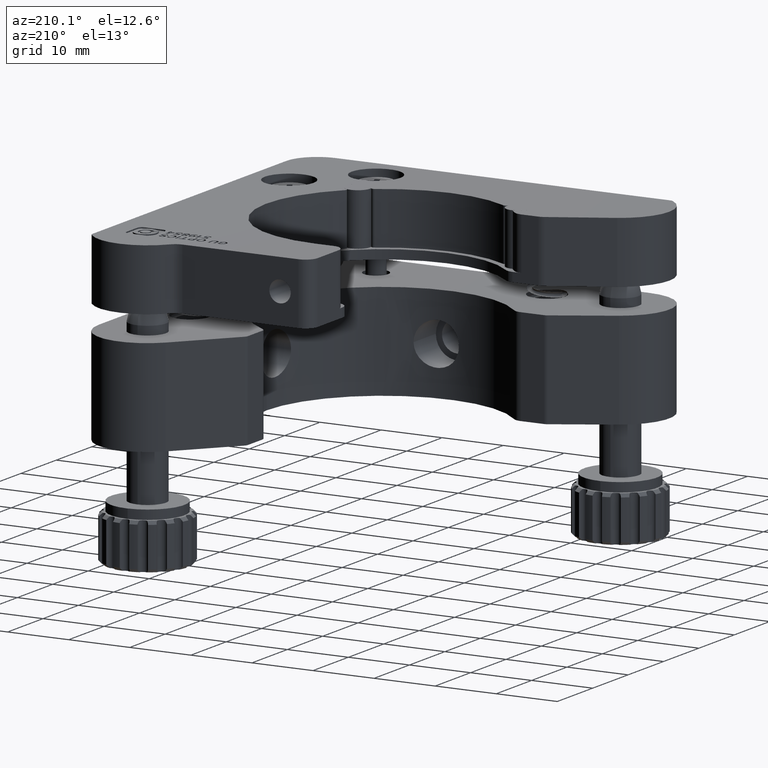
[diagram: clean part render]
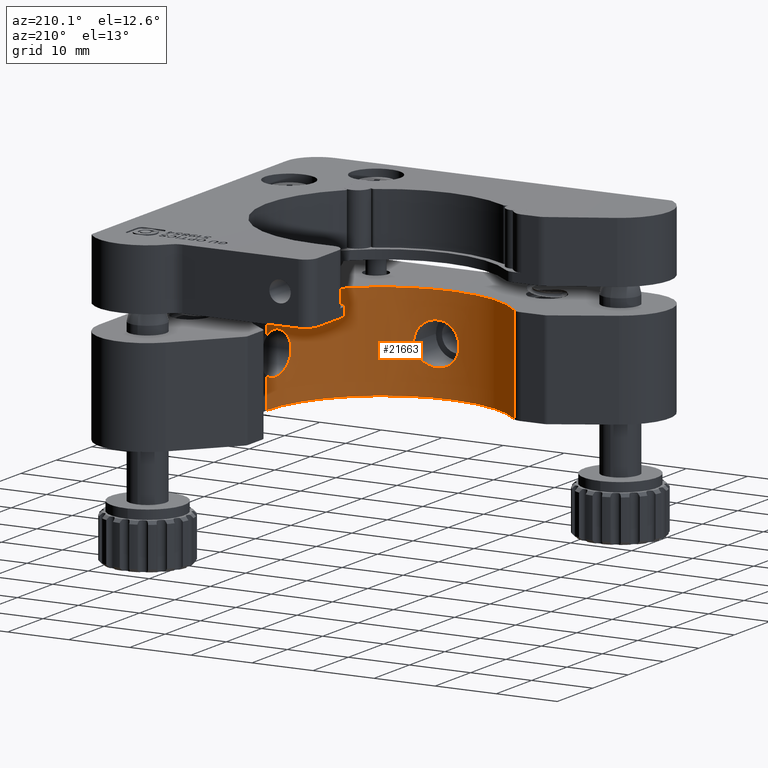
[diagram: same view with one face highlighted and labeled with its STEP entity id]
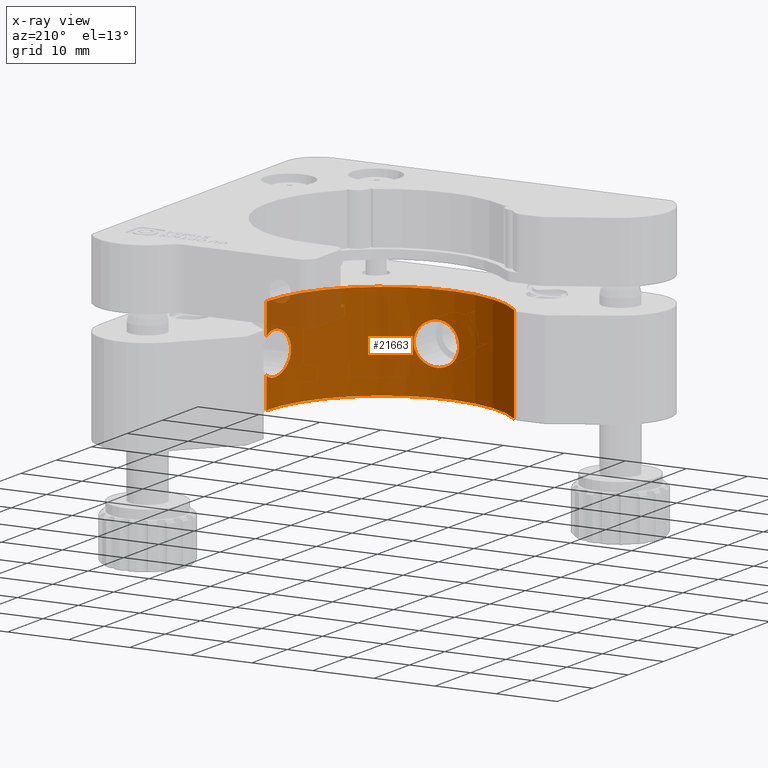
[diagram: x-ray of the same camera — body ghosted, the highlighted face saturated]
A machine part, auxiliary view. The second image highlights one B-rep face of the part: STEP entity #21663.
The next image is the same camera in x-ray: the body ghosted, the highlighted face saturated — about 10% of this face is hidden behind the body in this view.
In plain terms, the highlighted cylindrical surface (partial cylindrical patch) has radius 19 mm, axis along (0, 0, -1).
Its self-contained STEP definition (entity closure, byte-faithful):
#254 = CARTESIAN_POINT ( 'NONE',  ( -26.61379256147667900, 13.77937935081580700, 8.814848814971515600 ) ) ;
#429 = CARTESIAN_POINT ( 'NONE',  ( -26.52293857209325300, 13.80648507105459400, 7.439100718469515700 ) ) ;
#489 = CARTESIAN_POINT ( 'NONE',  ( -13.10555637230881300, 30.00000000000000000, 4.400000000000001200 ) ) ;
#546 = CARTESIAN_POINT ( 'NONE',  ( -30.20344647902263100, 13.08373591473725600, 4.398476656853080900 ) ) ;
#657 = CARTESIAN_POINT ( 'NONE',  ( -33.38649777885886700, 13.05060202588127500, 6.986400601522569300 ) ) ;
#723 = CARTESIAN_POINT ( 'NONE',  ( -13.57216054582884000, 27.36943169186558200, 5.580147786687201800 ) ) ;
#841 = CARTESIAN_POINT ( 'NONE',  ( -13.67790615344011200, 26.96828120605987100, 9.663690104870275000 ) ) ;
#1232 = CARTESIAN_POINT ( 'NONE',  ( -13.03242835914690500, 30.87754211996724500, 11.29283710719579000 ) ) ;
#1251 = EDGE_CURVE ( 'NONE', #28692, #14762, #32660, .T. ) ;
#1999 = LINE ( 'NONE', #27450, #31190 ) ;
#2401 = ORIENTED_EDGE ( 'NONE', *, *, #9771, .F. ) ;
#2671 = ORIENTED_EDGE ( 'NONE', *, *, #24306, .F. ) ;
#2908 = FACE_BOUND ( 'NONE', #15298, .T. ) ;
#3184 = CARTESIAN_POINT ( 'NONE',  ( -13.00000000000000000, 31.99999999999999300, 5.027718676730983400 ) ) ;
#3253 = CARTESIAN_POINT ( 'NONE',  ( -26.68044494635680800, 13.75964079812303400, 6.767303827567102900 ) ) ;
#3379 = CARTESIAN_POINT ( 'NONE',  ( -30.88614159856999600, 13.03133530389819900, 4.506285904225546100 ) ) ;
#3503 = CARTESIAN_POINT ( 'NONE',  ( -33.49999999999999300, 13.05930307512418200, 7.670711364052702500 ) ) ;
#3567 = CARTESIAN_POINT ( 'NONE',  ( -13.67787846902648000, 26.96835414940213800, 6.135970728754820400 ) ) ;
#3689 = CARTESIAN_POINT ( 'NONE',  ( -13.57241127540831900, 27.36837550289827400, 10.21886919155563500 ) ) ;
#3993 = CARTESIAN_POINT ( 'NONE',  ( -29.07593242472173900, 13.22500457450715000, 11.28345611036562500 ) ) ;
#4095 = CARTESIAN_POINT ( 'NONE',  ( -13.00944961083515100, 31.38003586603430200, 11.12132316934830800 ) ) ;
#4335 = CARTESIAN_POINT ( 'NONE',  ( -12.99999999999999800, 31.99999999999999300, 15.80000000000000100 ) ) ;
#4647 = CARTESIAN_POINT ( 'NONE',  ( -27.86060430729724800, 13.45538957386029300, 10.67931281705728500 ) ) ;
#4678 = CARTESIAN_POINT ( 'NONE',  ( -13.10555637230881300, 30.00000000000000000, 4.400000000000001200 ) ) ;
#4719 = CARTESIAN_POINT ( 'NONE',  ( -13.08671396365056000, 30.17800841410163700, 4.400000000000001200 ) ) ;
#4771 = CARTESIAN_POINT ( 'NONE',  ( -13.07055539464029600, 30.35469146604483400, 4.413505590009268800 ) ) ;
#4903 = CARTESIAN_POINT ( 'NONE',  ( -13.04334905552778200, 30.70528064480065600, 4.467212718642294100 ) ) ;
#5032 = CARTESIAN_POINT ( 'NONE',  ( -13.03226624041763100, 30.88031100727214800, 4.507887339479480300 ) ) ;
#5097 = CARTESIAN_POINT ( 'NONE',  ( -13.01533405423599300, 31.21827988219262200, 4.614095269209277800 ) ) ;
#5122 = CARTESIAN_POINT ( 'NONE',  ( -46.16176385749867700, 19.33333333333333600, 0.0000000000000000000 ) ) ;
#5154 = CARTESIAN_POINT ( 'NONE',  ( -13.00938847494046300, 31.38206268980831800, 4.679579672124440900 ) ) ;
#5228 = DIRECTION ( 'NONE',  ( 1.000000000000000000, 0.0000000000000000000, 0.0000000000000000000 ) ) ;
#5277 = CARTESIAN_POINT ( 'NONE',  ( -13.00000000000000000, 31.99999999999999300, 5.027718676730983400 ) ) ;
#5349 = DIRECTION ( 'NONE',  ( 0.0000000000000000000, 0.0000000000000000000, -1.000000000000000000 ) ) ;
#5435 = CARTESIAN_POINT ( 'NONE',  ( -32.00000000000000000, 31.99999999999999300, 15.80000000000000100 ) ) ;
#5517 = CARTESIAN_POINT ( 'NONE',  ( -12.99999999999998900, 31.85390765828243100, 4.925993027133885400 ) ) ;
#5636 = CARTESIAN_POINT ( 'NONE',  ( -13.00171732395007700, 31.69928755271454100, 4.835097688352251000 ) ) ;
#6130 = CARTESIAN_POINT ( 'NONE',  ( -26.96376865933720500, 13.67914926086966800, 6.144081613914720700 ) ) ;
#6249 = CARTESIAN_POINT ( 'NONE',  ( -33.14345000254347400, 13.03423350290454000, 9.456020375818265900 ) ) ;
#6253 = CARTESIAN_POINT ( 'NONE',  ( -31.53281851982065500, 13.00454172677027200, 4.745058032561093600 ) ) ;
#6432 = CARTESIAN_POINT ( 'NONE',  ( -13.75906039585499800, 26.68243287304896300, 6.761591251494308200 ) ) ;
#6546 = CARTESIAN_POINT ( 'NONE',  ( -13.45345017494627300, 27.86929308336689800, 10.68596273644470300 ) ) ;
#6822 = CARTESIAN_POINT ( 'NONE',  ( -33.50000000000000700, 13.05930307512418400, 8.129246592961241200 ) ) ;
#6960 = CARTESIAN_POINT ( 'NONE',  ( -13.00000000000000000, 31.85389812765770800, 10.87401360914134900 ) ) ;
#7550 = VECTOR ( 'NONE', #27527, 1000.000000000000000 ) ;
#7978 = CARTESIAN_POINT ( 'NONE',  ( -12.99999999999999800, 31.99999999999999300, 15.80000000000000100 ) ) ;
#8310 = AXIS2_PLACEMENT_3D ( 'NONE', #24333, #18772, #13205 ) ;
#8606 = CARTESIAN_POINT ( 'NONE',  ( -26.68180674337527600, 13.75924588885080100, 9.036383381796127900 ) ) ;
#8771 = CARTESIAN_POINT ( 'NONE',  ( -32.62999338712314300, 13.00974776582184200, 10.22075678095701100 ) ) ;
#8921 = CARTESIAN_POINT ( 'NONE',  ( -28.43659694826066800, 13.33593540090664400, 11.03962009302632200 ) ) ;
#8964 = CARTESIAN_POINT ( 'NONE',  ( -33.38687032065535500, 13.05062890349204200, 8.812650501717435200 ) ) ;
#8970 = CARTESIAN_POINT ( 'NONE',  ( -27.36353409102658300, 13.57365451815729800, 5.586956422066085900 ) ) ;
#9082 = CARTESIAN_POINT ( 'NONE',  ( -32.12142831886928500, 12.99942587056227000, 5.106778986570432700 ) ) ;
#9145 = CARTESIAN_POINT ( 'NONE',  ( -13.15855487214591200, 29.54013548004275700, 4.422863783497167100 ) ) ;
#9154 = CARTESIAN_POINT ( 'NONE',  ( -26.96449371720246500, 13.67894145926942100, 9.657397035521832200 ) ) ;
#9168 = VERTEX_POINT ( 'NONE', #26474 ) ;
#9207 = CARTESIAN_POINT ( 'NONE',  ( -27.22016045595117000, 13.61058338309457100, 10.03897986028541400 ) ) ;
#9269 = CARTESIAN_POINT ( 'NONE',  ( -13.80652376716429700, 26.52280079688516400, 7.438271687927505500 ) ) ;
#9386 = CARTESIAN_POINT ( 'NONE',  ( -13.33315361820801900, 28.45110572871785600, 11.04689011322392200 ) ) ;
#9581 = CARTESIAN_POINT ( 'NONE',  ( -31.53700223035562500, 13.00443608880750200, 11.05293678001663500 ) ) ;
#9771 = EDGE_CURVE ( 'NONE', #29721, #25970, #20162, .T. ) ;
#10401 = VERTEX_POINT ( 'NONE', #34171 ) ;
#11189 = EDGE_CURVE ( 'NONE', #25298, #10401, #23151, .T. ) ;
#11798 = CARTESIAN_POINT ( 'NONE',  ( -28.22820433230691300, 13.37332939894202100, 4.847939060754304000 ) ) ;
#11861 = CARTESIAN_POINT ( 'NONE',  ( -13.13012970129480500, 29.76785031036469700, 4.400000000000002100 ) ) ;
#11914 = CARTESIAN_POINT ( 'NONE',  ( -32.62990185073736900, 13.00973044478142500, 5.578923490536654500 ) ) ;
#11975 = CARTESIAN_POINT ( 'NONE',  ( -13.25812025767751700, 28.87143109820737100, 4.579071923188266200 ) ) ;
#12097 = CARTESIAN_POINT ( 'NONE',  ( -13.81351181281012000, 26.49985023459095100, 8.127980029502484900 ) ) ;
#12216 = CARTESIAN_POINT ( 'NONE',  ( -13.22280377201978900, 29.08996571297844000, 11.28736156398739400 ) ) ;
#12239 = CARTESIAN_POINT ( 'NONE',  ( -12.99999999999999800, 31.99999999999999300, 0.0000000000000000000 ) ) ;
#12514 = CARTESIAN_POINT ( 'NONE',  ( -13.08692887258360200, 30.17597812174145800, 11.39999999999999700 ) ) ;
#12534 = CIRCLE ( 'NONE', #19210, 19.00000000000000400 ) ;
#12653 = LINE ( 'NONE', #4335, #26779 ) ;
#12750 = EDGE_CURVE ( 'NONE', #25646, #25290, #12534, .T. ) ;
#12928 = ORIENTED_EDGE ( 'NONE', *, *, #26822, .F. ) ;
#13205 = DIRECTION ( 'NONE',  ( 1.000000000000000000, 0.0000000000000000000, 0.0000000000000000000 ) ) ;
#13898 = ORIENTED_EDGE ( 'NONE', *, *, #12750, .T. ) ;
#14486 = CARTESIAN_POINT ( 'NONE',  ( -31.73955635355361300, 13.00082082670875400, 10.94575370329465400 ) ) ;
#14534 = CARTESIAN_POINT ( 'NONE',  ( -26.50000000000000000, 13.81346652052678100, 7.900000000000002100 ) ) ;
#14630 = B_SPLINE_CURVE_WITH_KNOTS ( 'NONE', 3,
 ( #489, #11861, #9145, #28909, #11975, #31743, #14833, #34557, #17703, #723, #20549, #3567, #23396, #6432, #26181, #9269, #29025, #12097, #31856, #14965, #34676, #17826, #841, #20671, #3689, #23512, #6546, #26299, #9386, #29142, #12216, #31977, #15087, #34806 ),
 .UNSPECIFIED., .F., .F.,
 ( 4, 2, 2, 2, 2, 2, 2, 2, 2, 2, 2, 2, 2, 2, 2, 2, 4 ),
 ( 0.0000000000000000000, 0.0006901879488658928500, 0.001380375897731785700, 0.002070563846597678300, 0.002760751795463571400, 0.003450939744329464500, 0.004141127693195356700, 0.004831315642061249700, 0.005521503590927142800, 0.006211691539793035900, 0.006901879488658928900, 0.007592067437524821100, 0.008282255386390713300, 0.008972443335256607300, 0.009662631284122499500, 0.01035281923298839300, 0.01104300718185428600 ),
 .UNSPECIFIED. ) ;
#14651 = CARTESIAN_POINT ( 'NONE',  ( -29.07306612839719800, 13.22543552546297900, 4.517237927398486600 ) ) ;
#14762 = VERTEX_POINT ( 'NONE', #17328 ) ;
#14773 = CARTESIAN_POINT ( 'NONE',  ( -33.03191327482028300, 13.02761010188595700, 6.136456365820173200 ) ) ;
#14833 = CARTESIAN_POINT ( 'NONE',  ( -13.37291453636055400, 28.24911812561296600, 4.860901626521430400 ) ) ;
#14965 = CARTESIAN_POINT ( 'NONE',  ( -13.77940034952047400, 26.61372195565118700, 8.814537552783566100 ) ) ;
#15087 = CARTESIAN_POINT ( 'NONE',  ( -13.12979434288282300, 29.77101851566990100, 11.40000000000000000 ) ) ;
#15228 = CARTESIAN_POINT ( 'NONE',  ( -33.31945071367903200, 13.04566470316521200, 9.033015572667896000 ) ) ;
#15271 = CARTESIAN_POINT ( 'NONE',  ( -29.74769364930744300, 13.13254978706092900, 11.39847085872303200 ) ) ;
#15294 = VERTEX_POINT ( 'NONE', #19616 ) ;
#15298 = EDGE_LOOP ( 'NONE', ( #12928, #35634 ) ) ;
#15795 = CARTESIAN_POINT ( 'NONE',  ( -33.50000000000000000, 13.05930307512418200, 7.900000000000000400 ) ) ;
#15907 = CARTESIAN_POINT ( 'NONE',  ( -32.12238617565052600, 12.99942996181936100, 10.69251658002766600 ) ) ;
#16034 = CARTESIAN_POINT ( 'NONE',  ( -29.52135842951588200, 13.16102549560780200, 11.37456160996688000 ) ) ;
#16195 = CARTESIAN_POINT ( 'NONE',  ( -33.47769878084020700, 13.05749539916673600, 8.357638172537893000 ) ) ;
#17109 = CARTESIAN_POINT ( 'NONE',  ( -30.43786327507492800, 13.06299010752557500, 11.38001579617091300 ) ) ;
#17132 = FACE_OUTER_BOUND ( 'NONE', #19726, .T. ) ;
#17328 = CARTESIAN_POINT ( 'NONE',  ( -26.50000000000000000, 13.81346652052678100, 7.900000000000002100 ) ) ;
#17528 = CARTESIAN_POINT ( 'NONE',  ( -29.74714132419419600, 13.13263984326413900, 4.401697742833071900 ) ) ;
#17637 = CARTESIAN_POINT ( 'NONE',  ( -33.31963009604711300, 13.04567516635520100, 6.767302621685092700 ) ) ;
#17674 = ORIENTED_EDGE ( 'NONE', *, *, #36559, .F. ) ;
#17703 = CARTESIAN_POINT ( 'NONE',  ( -13.49423926402293200, 27.69137500033067000, 5.259573040912656900 ) ) ;
#17826 = CARTESIAN_POINT ( 'NONE',  ( -13.70876310285975200, 26.85809786873334600, 9.459341663358324900 ) ) ;
#17876 = CARTESIAN_POINT ( 'NONE',  ( -33.50000000000000000, 13.05930307512418200, 7.900000000000000400 ) ) ;
#18212 = CARTESIAN_POINT ( 'NONE',  ( -13.04357750630926700, 30.70195385909600800, 11.33346239304578000 ) ) ;
#18772 = DIRECTION ( 'NONE',  ( 0.0000000000000000000, 0.0000000000000000000, -1.000000000000000000 ) ) ;
#19210 = AXIS2_PLACEMENT_3D ( 'NONE', #29650, #29567, #29526 ) ;
#19616 = CARTESIAN_POINT ( 'NONE',  ( -12.99999999999999600, 32.00000000000000000, 10.77228132326903600 ) ) ;
#19726 = EDGE_LOOP ( 'NONE', ( #31397, #22415, #23139, #17674, #2401, #23144, #13898, #2671 ) ) ;
#20162 = B_SPLINE_CURVE_WITH_KNOTS ( 'NONE', 3,
 ( #5277, #5517, #5636, #5154, #5097, #5032, #4903, #4771, #4719, #4678 ),
 .UNSPECIFIED., .F., .F.,
 ( 4, 2, 2, 2, 4 ),
 ( 0.01987121346951910300, 0.02040043779199262500, 0.02092966211446614700, 0.02145888643693966500, 0.02198811075941318700 ),
 .UNSPECIFIED. ) ;
#20241 = B_SPLINE_CURVE_WITH_KNOTS ( 'NONE', 3,
 ( #26585, #12514, #35093, #18212, #1232, #21074, #4095, #23916, #6960, #26696 ),
 .UNSPECIFIED., .F., .F.,
 ( 4, 2, 2, 2, 4 ),
 ( 0.01104300718185428600, 0.01157343425653823000, 0.01210386133122217700, 0.01263428840590613200, 0.01316471548059008700 ),
 .UNSPECIFIED. ) ;
#20251 = CARTESIAN_POINT ( 'NONE',  ( -26.61257234982942100, 13.77974175075993600, 6.990209784614032500 ) ) ;
#20374 = CARTESIAN_POINT ( 'NONE',  ( -30.43595049108755600, 13.06313991113506900, 4.419699802330995900 ) ) ;
#20492 = CARTESIAN_POINT ( 'NONE',  ( -33.47700692980024000, 13.05744182530676600, 7.437989310474929300 ) ) ;
#20549 = CARTESIAN_POINT ( 'NONE',  ( -13.60940773380303700, 27.22467661198756500, 5.755179279005306900 ) ) ;
#20671 = CARTESIAN_POINT ( 'NONE',  ( -13.60996791760912900, 27.22254911568183600, 10.04188893660417900 ) ) ;
#21074 = CARTESIAN_POINT ( 'NONE',  ( -13.01543263882349200, 31.21585221272148700, 11.18681109969854500 ) ) ;
#21076 = CYLINDRICAL_SURFACE ( 'NONE', #8310, 19.00000000000000400 ) ;
#21663 = ADVANCED_FACE ( 'NONE', ( #2908, #17132 ), #21076, .F. ) ;
#21725 = B_SPLINE_CURVE_WITH_KNOTS ( 'NONE', 3,
 ( #14534, #31444, #429, #20251, #3253, #23093, #6130, #25874, #8970, #28728, #11798, #31561, #14651, #34384, #17528, #546, #20374, #3379, #23207, #6253, #25994, #9082, #28852, #11914, #31680, #14773, #34500, #17637, #657, #20492, #3503, #23331 ),
 .UNSPECIFIED., .F., .F.,
 ( 4, 2, 2, 2, 2, 2, 2, 2, 2, 2, 2, 2, 2, 2, 2, 4 ),
 ( 1.734723475976807100E-018, 0.0006873903440622505500, 0.001374780688124499400, 0.002062171032186747900, 0.002749561376248997000, 0.004124342064373501800, 0.004811732408435754000, 0.005499122752498006100, 0.006186513096560258300, 0.006873903440622511400, 0.007561293784684763500, 0.008248684128747015700, 0.008936074472809267900, 0.009623464816871520100, 0.01031085516093377200, 0.01099824550499602400 ),
 .UNSPECIFIED. ) ;
#22415 = ORIENTED_EDGE ( 'NONE', *, *, #26602, .T. ) ;
#22855 = AXIS2_PLACEMENT_3D ( 'NONE', #5435, #5349, #5228 ) ;
#23093 = CARTESIAN_POINT ( 'NONE',  ( -26.85634510179303900, 13.70925960846881600, 6.344403569626225100 ) ) ;
#23139 = ORIENTED_EDGE ( 'NONE', *, *, #29218, .F. ) ;
#23144 = ORIENTED_EDGE ( 'NONE', *, *, #35134, .T. ) ;
#23151 = CIRCLE ( 'NONE', #22855, 19.00000000000000400 ) ;
#23206 = CARTESIAN_POINT ( 'NONE',  ( -32.77591319497768300, 13.01541262873312700, 10.04418015133130200 ) ) ;
#23207 = CARTESIAN_POINT ( 'NONE',  ( -31.10557208700807400, 13.01986058391837800, 4.571201148606140100 ) ) ;
#23331 = CARTESIAN_POINT ( 'NONE',  ( -33.50000000000000000, 13.05930307512418200, 7.900000000000000400 ) ) ;
#23396 = CARTESIAN_POINT ( 'NONE',  ( -13.70861559926219500, 26.85863301289028400, 6.339859117644289600 ) ) ;
#23512 = CARTESIAN_POINT ( 'NONE',  ( -13.49373336532969200, 27.69348552407635500, 10.54245961059889500 ) ) ;
#23916 = CARTESIAN_POINT ( 'NONE',  ( -13.00172589682463100, 31.69843622328070900, 10.96540965425002100 ) ) ;
#24306 = EDGE_CURVE ( 'NONE', #10401, #25290, #1999, .T. ) ;
#24333 = CARTESIAN_POINT ( 'NONE',  ( -32.00000000000000000, 31.99999999999999300, 15.80000000000000100 ) ) ;
#24757 = CARTESIAN_POINT ( 'NONE',  ( -32.30407603200937700, 13.00173404354268800, 10.54461923372520700 ) ) ;
#25063 = CARTESIAN_POINT ( 'NONE',  ( -27.36421351500919700, 13.57348505132499200, 10.21379102698923800 ) ) ;
#25290 = VERTEX_POINT ( 'NONE', #5122 ) ;
#25298 = VERTEX_POINT ( 'NONE', #7978 ) ;
#25646 = VERTEX_POINT ( 'NONE', #12239 ) ;
#25874 = CARTESIAN_POINT ( 'NONE',  ( -27.21714295462446400, 13.61137644069931900, 5.765133072620441700 ) ) ;
#25970 = VERTEX_POINT ( 'NONE', #30782 ) ;
#25994 = CARTESIAN_POINT ( 'NONE',  ( -31.73900660563656800, 13.00083042517435700, 4.853953748296417500 ) ) ;
#26181 = CARTESIAN_POINT ( 'NONE',  ( -13.77917331667335300, 26.61448577000013300, 6.982176089448448600 ) ) ;
#26299 = CARTESIAN_POINT ( 'NONE',  ( -13.37336616813792400, 28.24689966320479300, 10.93778530225148400 ) ) ;
#26474 = CARTESIAN_POINT ( 'NONE',  ( -13.10555637230881500, 30.00000000000000000, 11.40000000000000000 ) ) ;
#26585 = CARTESIAN_POINT ( 'NONE',  ( -13.10555637230881500, 30.00000000000000000, 11.40000000000000000 ) ) ;
#26602 = EDGE_CURVE ( 'NONE', #25298, #15294, #30066, .T. ) ;
#26696 = CARTESIAN_POINT ( 'NONE',  ( -12.99999999999999600, 32.00000000000000000, 10.77228132326903600 ) ) ;
#26779 = VECTOR ( 'NONE', #35324, 1000.000000000000000 ) ;
#26822 = EDGE_CURVE ( 'NONE', #14762, #28692, #21725, .T. ) ;
#26892 = CARTESIAN_POINT ( 'NONE',  ( -30.88670140080391800, 13.03131050799602900, 11.29352247893995700 ) ) ;
#26978 = CARTESIAN_POINT ( 'NONE',  ( -28.23777956871193200, 13.37520818950036600, 10.93251921948813000 ) ) ;
#27450 = CARTESIAN_POINT ( 'NONE',  ( -46.16176385749867700, 19.33333333333333600, 15.80000000000000100 ) ) ;
#27527 = DIRECTION ( 'NONE',  ( 0.0000000000000000000, 0.0000000000000000000, -1.000000000000000000 ) ) ;
#28000 = CARTESIAN_POINT ( 'NONE',  ( -26.50000000000000400, 13.81346652052677500, 8.132476566241607000 ) ) ;
#28047 = CARTESIAN_POINT ( 'NONE',  ( -27.68341644018934000, 13.49610646757447100, 10.53333247453698500 ) ) ;
#28680 = CARTESIAN_POINT ( 'NONE',  ( -30.20793148258139000, 13.08328644124508800, 11.40138848779817200 ) ) ;
#28692 = VERTEX_POINT ( 'NONE', #15795 ) ;
#28728 = CARTESIAN_POINT ( 'NONE',  ( -27.84281833470472400, 13.45745604381850100, 5.106962300054745700 ) ) ;
#28852 = CARTESIAN_POINT ( 'NONE',  ( -32.30067329169087700, 13.00166560739895900, 5.252230691280939100 ) ) ;
#28909 = CARTESIAN_POINT ( 'NONE',  ( -13.22233665589609300, 29.09305189279586300, 4.511874149965795900 ) ) ;
#29025 = CARTESIAN_POINT ( 'NONE',  ( -13.81342077600981000, 26.50015126078410400, 7.667444465226279400 ) ) ;
#29142 = CARTESIAN_POINT ( 'NONE',  ( -13.25794929682222000, 28.87248663797052100, 11.22125043722422600 ) ) ;
#29151 = CARTESIAN_POINT ( 'NONE',  ( -26.52293568797611600, 13.80648428878476300, 8.361923089935242400 ) ) ;
#29218 = EDGE_CURVE ( 'NONE', #9168, #15294, #20241, .T. ) ;
#29526 = DIRECTION ( 'NONE',  ( 1.000000000000000000, 0.0000000000000000000, 0.0000000000000000000 ) ) ;
#29567 = DIRECTION ( 'NONE',  ( 0.0000000000000000000, 0.0000000000000000000, -1.000000000000000000 ) ) ;
#29650 = CARTESIAN_POINT ( 'NONE',  ( -32.00000000000000000, 31.99999999999999300, 0.0000000000000000000 ) ) ;
#29700 = CARTESIAN_POINT ( 'NONE',  ( -26.50000000000000000, 13.81346652052678100, 7.900000000000002100 ) ) ;
#29721 = VERTEX_POINT ( 'NONE', #3184 ) ;
#30066 = LINE ( 'NONE', #30501, #7550 ) ;
#30299 = DIRECTION ( 'NONE',  ( 0.0000000000000000000, 0.0000000000000000000, -1.000000000000000000 ) ) ;
#30501 = CARTESIAN_POINT ( 'NONE',  ( -12.99999999999999800, 31.99999999999999300, 15.80000000000000100 ) ) ;
#30782 = CARTESIAN_POINT ( 'NONE',  ( -13.10555637230881300, 30.00000000000000000, 4.400000000000001200 ) ) ;
#31190 = VECTOR ( 'NONE', #30299, 1000.000000000000000 ) ;
#31397 = ORIENTED_EDGE ( 'NONE', *, *, #11189, .F. ) ;
#31444 = CARTESIAN_POINT ( 'NONE',  ( -26.50000000000000700, 13.81346652052678300, 7.667480798407060800 ) ) ;
#31561 = CARTESIAN_POINT ( 'NONE',  ( -28.85338158580138300, 13.26117352619932500, 4.585433636438700900 ) ) ;
#31680 = CARTESIAN_POINT ( 'NONE',  ( -32.77589544745455200, 13.01541652531114200, 5.755941064128879100 ) ) ;
#31743 = CARTESIAN_POINT ( 'NONE',  ( -13.33351859184953300, 28.44915904494232700, 4.754030612106070000 ) ) ;
#31856 = CARTESIAN_POINT ( 'NONE',  ( -13.80647754337655900, 26.52295851627658900, 8.361996157512862700 ) ) ;
#31977 = CARTESIAN_POINT ( 'NONE',  ( -13.15871385965256100, 29.53883476514336300, 11.37702565347073500 ) ) ;
#32660 = B_SPLINE_CURVE_WITH_KNOTS ( 'NONE', 3,
 ( #17876, #6822, #16195, #8964, #15228, #6249, #34381, #23206, #8771, #24757, #15907, #14486, #9581, #35482, #26892, #17109, #28680, #15271, #16034, #3993, #34259, #8921, #26978, #4647, #28047, #25063, #9207, #9154, #34685, #8606, #254, #29151, #28000, #29700 ),
 .UNSPECIFIED., .F., .F.,
 ( 4, 2, 2, 2, 2, 2, 2, 2, 2, 2, 2, 2, 2, 2, 2, 2, 4 ),
 ( 0.01099824550499602400, 0.01168550980730075600, 0.01237277410960548700, 0.01306003841191021700, 0.01374730271421494900, 0.01443456701651968000, 0.01512183131882441000, 0.01580909562112915000, 0.01649635992343389400, 0.01718362422573863400, 0.01787088852804337400, 0.01855815283034811500, 0.01924541713265285500, 0.01993268143495759800, 0.02061994573726233500, 0.02130721003956707900, 0.02199447434187181900 ),
 .UNSPECIFIED. ) ;
#34171 = CARTESIAN_POINT ( 'NONE',  ( -46.16176385749867700, 19.33333333333333600, 15.80000000000000100 ) ) ;
#34259 = CARTESIAN_POINT ( 'NONE',  ( -28.85488655880972800, 13.26091223911047800, 11.21514081714907700 ) ) ;
#34381 = CARTESIAN_POINT ( 'NONE',  ( -33.03329475777867700, 13.02768066664085300, 9.661341959940436700 ) ) ;
#34384 = CARTESIAN_POINT ( 'NONE',  ( -29.52106906221457500, 13.16104794573291900, 4.425390554466899200 ) ) ;
#34500 = CARTESIAN_POINT ( 'NONE',  ( -33.14276276960762900, 13.03419005836777300, 6.342441173055881600 ) ) ;
#34557 = CARTESIAN_POINT ( 'NONE',  ( -13.45315335083523000, 27.87060451425411500, 5.112997824359986500 ) ) ;
#34676 = CARTESIAN_POINT ( 'NONE',  ( -13.75953875150874100, 26.68078218183181200, 9.033970238188752300 ) ) ;
#34685 = CARTESIAN_POINT ( 'NONE',  ( -26.85686973939474600, 13.70911425926393400, 9.456440118860907500 ) ) ;
#34806 = CARTESIAN_POINT ( 'NONE',  ( -13.10555637230881500, 30.00000000000000000, 11.40000000000000000 ) ) ;
#35093 = CARTESIAN_POINT ( 'NONE',  ( -13.07082775271361200, 30.35157178628170600, 11.38680376618044600 ) ) ;
#35134 = EDGE_CURVE ( 'NONE', #29721, #25646, #12653, .T. ) ;
#35324 = DIRECTION ( 'NONE',  ( 0.0000000000000000000, 0.0000000000000000000, -1.000000000000000000 ) ) ;
#35482 = CARTESIAN_POINT ( 'NONE',  ( -31.10918410337245300, 13.01968750844153400, 11.22762630409811500 ) ) ;
#35634 = ORIENTED_EDGE ( 'NONE', *, *, #1251, .F. ) ;
#36559 = EDGE_CURVE ( 'NONE', #25970, #9168, #14630, .T. ) ;